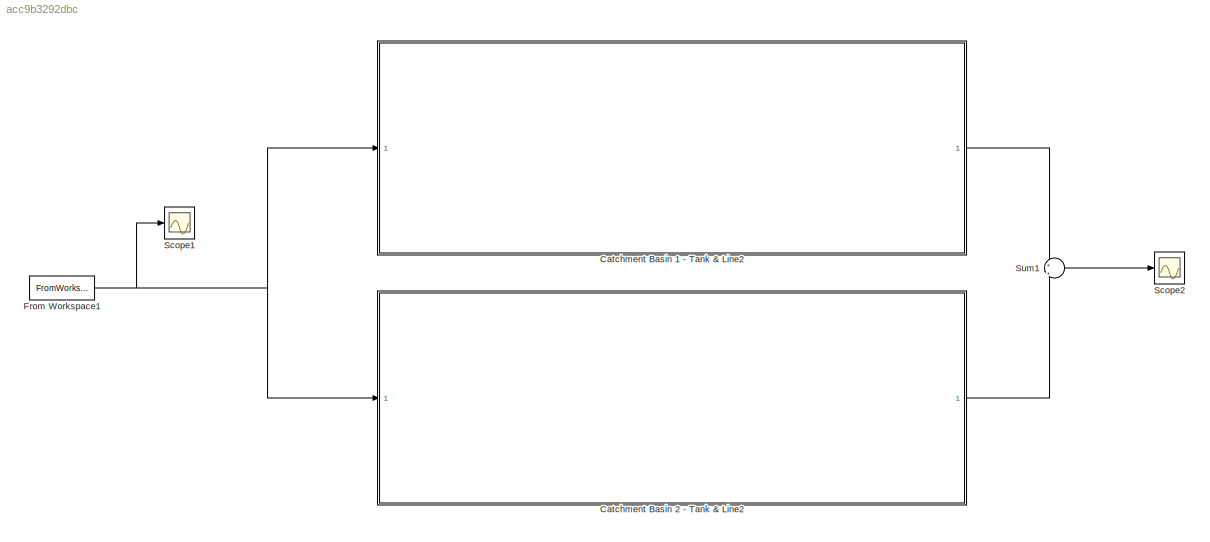
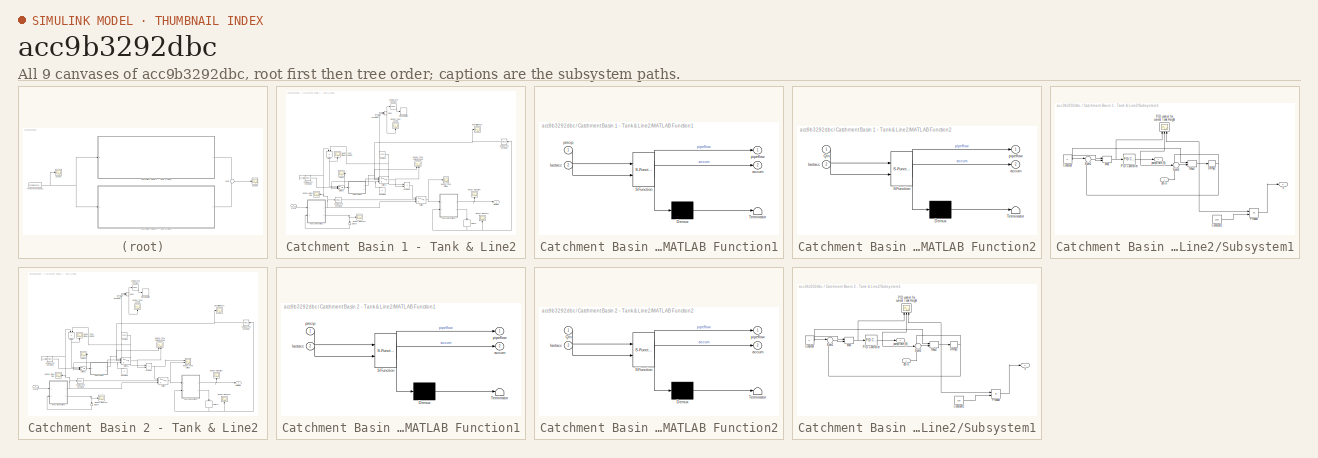
[diagram: thumbnail index - all 9 canvases of the model, root first then tree order]
MODEL slx_acc9b3292dbc
KIND model
CONFIG AbsTol = auto
CONFIG EnableMultiTasking = off
CONFIG FixedStep = auto
CONFIG MaxStep = auto
CONFIG MinStep = auto
CONFIG RelTol = 1e-3
CONFIG SampleTimeConstraint = Unconstrained
CONFIG Solver = VariableStepAuto
CONFIG SolverName = VariableStepAuto
CONFIG StartTime = 0.0
CONFIG StopTime = 10.0
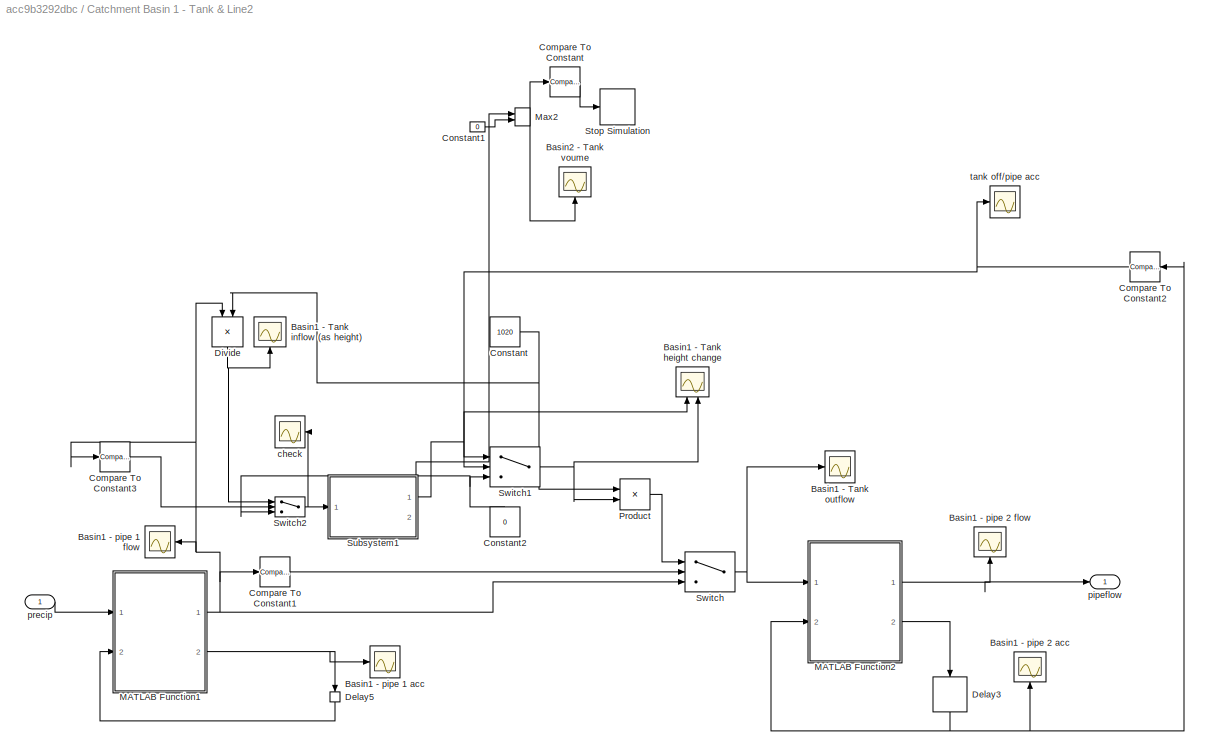
BLOCK [SubSystem] Catchment Basin 1 - Tank & Line2
  Ports = [1, 1]
  RequestExecContextInheritance = off
BLOCK [Scope] Catchment Basin 1 - Tank & Line2/  Basin1 - pipe 1 flow
  Floating = off
  NumInputPorts = 1
  Ports = [1]
  ScopeSpecificationString = Simulink.scopes.TimeScopeBlockCfg('CurrentConfiguration', extmgr.ConfigurationSet(extmgr.Configuration('Core','General UI',true),extmgr.Configuration('Core','Source UI',true),extmgr.Configuration('Sources','WiredSimulink',true,'DataLoggingVariableName','ScopeData3'),extmgr.Configuration('Visuals','Time Domain',true,'SerializedDisplays',{struct('MinYLimReal','-2423.75','MaxYLimReal','21813.75','YLa...<+1491ch>
BLOCK [Scope] Catchment Basin 1 - Tank & Line2/ Basin1 - pipe 1 acc
  Floating = off
  NumInputPorts = 1
  Ports = [1]
  ScopeSpecificationString = Simulink.scopes.TimeScopeBlockCfg('CurrentConfiguration', extmgr.ConfigurationSet(extmgr.Configuration('Core','General UI',true),extmgr.Configuration('Core','Source UI',true),extmgr.Configuration('Sources','WiredSimulink',true,'DataLoggingVariableName','ScopeData1'),extmgr.Configuration('Visuals','Time Domain',true,'SerializedDisplays',{struct('MinYLimReal','-4305934.13618','MaxYLimReal','38753407...<+1459ch>
BLOCK [Scope] Catchment Basin 1 - Tank & Line2/ Basin2 - Tank voume
  Floating = off
  NameLocation = right
  NumInputPorts = 1
  Ports = [1]
  ScopeSpecificationString = Simulink.scopes.TimeScopeBlockCfg('CurrentConfiguration', extmgr.ConfigurationSet(extmgr.Configuration('Core','General UI',true),extmgr.Configuration('Core','Source UI',true),extmgr.Configuration('Sources','WiredSimulink',true,'DataLoggingVariableName','ScopeData5'),extmgr.Configuration('Visuals','Time Domain',true,'SerializedDisplays',{struct('MinYLimReal','-965.25711','MaxYLimReal','21522.05142'...<+1588ch>
BLOCK [Scope] Catchment Basin 1 - Tank & Line2/Basin1 - Tank  inflow (as height)
  Floating = off
  NameLocation = right
  NumInputPorts = 1
  Ports = [1]
  ScopeSpecificationString = Simulink.scopes.TimeScopeBlockCfg('CurrentConfiguration', extmgr.ConfigurationSet(extmgr.Configuration('Core','General UI',true),extmgr.Configuration('Core','Source UI',true),extmgr.Configuration('Sources','WiredSimulink',true,'DataLoggingVariableName','ScopeData4'),extmgr.Configuration('Visuals','Time Domain',true,'SerializedDisplays',{struct('MinYLimReal','-2.37623','MaxYLimReal','21.38603','YLa...<+1422ch>
BLOCK [Scope] Catchment Basin 1 - Tank & Line2/Basin1 - Tank height change
  Floating = off
  NameLocation = right
  NumInputPorts = 2
  Ports = [2]
  ScopeSpecificationString = Simulink.scopes.TimeScopeBlockCfg('CurrentConfiguration', extmgr.ConfigurationSet(extmgr.Configuration('Core','General UI',true),extmgr.Configuration('Core','Source UI',true),extmgr.Configuration('Sources','WiredSimulink',true,'DataLoggingVariableName','ScopeData2'),extmgr.Configuration('Visuals','Time Domain',true,'SerializedDisplays',{struct('MinYLimReal','-17.02648','MaxYLimReal','153.23828','Y...<+1463ch>
BLOCK [Scope] Catchment Basin 1 - Tank & Line2/Basin1 - Tank outflow
  Floating = off
  NumInputPorts = 1
  Ports = [1]
  ScopeSpecificationString = Simulink.scopes.TimeScopeBlockCfg('CurrentConfiguration', extmgr.ConfigurationSet(extmgr.Configuration('Core','General UI',true),extmgr.Configuration('Core','Source UI',true),extmgr.Configuration('Sources','WiredSimulink',true,'DataLoggingVariableName','ScopeData1'),extmgr.Configuration('Visuals','Time Domain',true,'SerializedDisplays',{struct('MinYLimReal','-38214.64252','MaxYLimReal','387928.816...<+1599ch>
BLOCK [Scope] Catchment Basin 1 - Tank & Line2/Basin1 - pipe 2 acc
  Floating = off
  NameLocation = right
  NumInputPorts = 1
  Ports = [1]
  ScopeSpecificationString = Simulink.scopes.TimeScopeBlockCfg('CurrentConfiguration', extmgr.ConfigurationSet(extmgr.Configuration('Core','General UI',true),extmgr.Configuration('Core','Source UI',true),extmgr.Configuration('Sources','WiredSimulink',true,'DataLoggingVariableName','ScopeData3'),extmgr.Configuration('Visuals','Time Domain',true,'SerializedDisplays',{struct('MinYLimReal','-6708.05068','MaxYLimReal','60372.45611...<+1439ch>
BLOCK [Scope] Catchment Basin 1 - Tank & Line2/Basin1 - pipe 2 flow
  Floating = off
  NameLocation = right
  NumInputPorts = 1
  Ports = [1]
  ScopeSpecificationString = Simulink.scopes.TimeScopeBlockCfg('CurrentConfiguration', extmgr.ConfigurationSet(extmgr.Configuration('Core','General UI',true),extmgr.Configuration('Core','Source UI',true),extmgr.Configuration('Sources','WiredSimulink',true,'DataLoggingVariableName','ScopeData2'),extmgr.Configuration('Visuals','Time Domain',true,'SerializedDisplays',{struct('MinYLimReal','-1803.24346','MaxYLimReal','21813.75','...<+1446ch>
BLOCK [Reference] Catchment Basin 1 - Tank & Line2/Compare To Constant  REF=simulink/Logic and Bit
Operations/Compare
To Constant
  Ports = [1, 1]
  SourceBlock = simulink/Logic and Bit\nOperations/Compare\nTo Constant
  SourceProductBaseCode = SL
  SourceType = Compare To Constant
BLOCK [Reference] Catchment Basin 1 - Tank & Line2/Compare To Constant1  REF=simulink/Logic and Bit
Operations/Compare
To Constant
  Ports = [1, 1]
  SourceBlock = simulink/Logic and Bit\nOperations/Compare\nTo Constant
  SourceProductBaseCode = SL
  SourceType = Compare To Constant
BLOCK [Reference] Catchment Basin 1 - Tank & Line2/Compare To Constant2  REF=simulink/Logic and Bit
Operations/Compare
To Constant
  Ports = [1, 1]
  SourceBlock = simulink/Logic and Bit\nOperations/Compare\nTo Constant
  SourceProductBaseCode = SL
  SourceType = Compare To Constant
BLOCK [Reference] Catchment Basin 1 - Tank & Line2/Compare To Constant3  REF=simulink/Logic and Bit
Operations/Compare
To Constant
  Ports = [1, 1]
  SourceBlock = simulink/Logic and Bit\nOperations/Compare\nTo Constant
  SourceProductBaseCode = SL
  SourceType = Compare To Constant
BLOCK [Constant] Catchment Basin 1 - Tank & Line2/Constant
  Value = 1020
BLOCK [Constant] Catchment Basin 1 - Tank & Line2/Constant1
  Value = 0
BLOCK [Constant] Catchment Basin 1 - Tank & Line2/Constant2
  NameLocation = right
  SampleTime = 1
  Value = 0
BLOCK [Delay] Catchment Basin 1 - Tank & Line2/Delay3
  DelayLength = 1
  InitialCondition = 0
  InputPortMap = u0
  NameLocation = right
  Ports = [1, 1]
BLOCK [Delay] Catchment Basin 1 - Tank & Line2/Delay5
  DelayLength = 1
  InitialCondition = 0
  InputPortMap = u0
  NameLocation = left
  Ports = [1, 1]
BLOCK [Product] Catchment Basin 1 - Tank & Line2/Divide
  Inputs = */
  NameLocation = left
  Ports = [2, 1]
BLOCK [SubSystem] Catchment Basin 1 - Tank & Line2/MATLAB Function1
  ErrorFcn = Stateflow.Translate.translate
  PermitHierarchicalResolution = ExplicitOnly
  Ports = [2, 2]
  RequestExecContextInheritance = off
  SFBlockType = MATLAB Function
  TreatAsAtomicUnit = on
BLOCK [Demux] Catchment Basin 1 - Tank & Line2/MATLAB Function1/ Demux 
  Outputs = 1
  Ports = [1, 1]
BLOCK [S-Function] Catchment Basin 1 - Tank & Line2/MATLAB Function1/ SFunction 
  EnableBusSupport = on
  FunctionName = sf_sfun
  Parameters = R,S,basin2,k,n
  PortCounts = [2 3]
  Ports = [2, 3]
  SFcnIsStateOwnerBlock = off
  SFunctionDeploymentMode = off
  Tag = Stateflow S-Function 8
BLOCK [Terminator] Catchment Basin 1 - Tank & Line2/MATLAB Function1/ Terminator 
BLOCK [Outport] Catchment Basin 1 - Tank & Line2/MATLAB Function1/accum
  Port = 2
BLOCK [Inport] Catchment Basin 1 - Tank & Line2/MATLAB Function1/lastacc
  Port = 2
BLOCK [Outport] Catchment Basin 1 - Tank & Line2/MATLAB Function1/pipeflow
BLOCK [Inport] Catchment Basin 1 - Tank & Line2/MATLAB Function1/precip
BLOCK [SubSystem] Catchment Basin 1 - Tank & Line2/MATLAB Function2
  ErrorFcn = Stateflow.Translate.translate
  PermitHierarchicalResolution = ExplicitOnly
  Ports = [2, 2]
  RequestExecContextInheritance = off
  SFBlockType = MATLAB Function
  TreatAsAtomicUnit = on
BLOCK [Demux] Catchment Basin 1 - Tank & Line2/MATLAB Function2/ Demux 
  Outputs = 1
  Ports = [1, 1]
BLOCK [S-Function] Catchment Basin 1 - Tank & Line2/MATLAB Function2/ SFunction 
  EnableBusSupport = on
  FunctionName = sf_sfun
  PortCounts = [2 3]
  Ports = [2, 3]
  SFcnIsStateOwnerBlock = off
  SFunctionDeploymentMode = off
  Tag = Stateflow S-Function 10
BLOCK [Terminator] Catchment Basin 1 - Tank & Line2/MATLAB Function2/ Terminator 
BLOCK [Inport] Catchment Basin 1 - Tank & Line2/MATLAB Function2/Qin
BLOCK [Outport] Catchment Basin 1 - Tank & Line2/MATLAB Function2/accum
  Port = 2
BLOCK [Inport] Catchment Basin 1 - Tank & Line2/MATLAB Function2/lastacc
  Port = 2
BLOCK [Outport] Catchment Basin 1 - Tank & Line2/MATLAB Function2/pipeflow
BLOCK [MinMax] Catchment Basin 1 - Tank & Line2/Max2
  Function = max
  Inputs = 2
  Ports = [2, 1]
BLOCK [Product] Catchment Basin 1 - Tank & Line2/Product
  Ports = [2, 1]
BLOCK [Stop] Catchment Basin 1 - Tank & Line2/Stop Simulation
  Commented = on
BLOCK [SubSystem] Catchment Basin 1 - Tank & Line2/Subsystem1
  PortSchema = {"entries":[{"content":{"sides":[{"content":{"connectorIds":["In1"]},"type":"ConnectorPlacement.EquallySpacedRectSide","uuid":"49521410-f26e-428f-a0f4-6065ef8c5de4"},{"content":{"connectorIds":["Out1"],"side":"RIGHT"},"type":"ConnectorPlacement.EquallySpacedRectSide","uuid":"23e51712-c361-47eb-a12a-34fba58dacf0"},{"content":{"connectorIds":["Out2"],"side":"TOP"},"type":"ConnectorPlacement.EquallyS...<+392ch>
  Ports = [1, 2]
  RequestExecContextInheritance = off
BLOCK [Constant] Catchment Basin 1 - Tank & Line2/Subsystem1/Constant
  SampleTime = 1
  Value = 0
BLOCK [Constant] Catchment Basin 1 - Tank & Line2/Subsystem1/Constant1
  Value = 1020
BLOCK [Delay] Catchment Basin 1 - Tank & Line2/Subsystem1/Delay2
  DelayLength = 1
  InitialCondition = 0
  InputPortMap = u0
  Ports = [1, 1]
BLOCK [MinMax] Catchment Basin 1 - Tank & Line2/Subsystem1/Max
  Function = max
  Inputs = 2
  Ports = [2, 1]
BLOCK [MinMax] Catchment Basin 1 - Tank & Line2/Subsystem1/Max2
  Function = max
  Inputs = 2
  Ports = [2, 1]
BLOCK [Reference] Catchment Basin 1 - Tank & Line2/Subsystem1/PID Controller  REF=simulink/Continuous/PID Controller
  Ports = [1, 1]
  SourceBlock = simulink/Continuous/PID Controller
  SourceProductBaseCode = SL
  SourceType = PID 1dof
BLOCK [Scope] Catchment Basin 1 - Tank & Line2/Subsystem1/PID control for current Tank Height
  Floating = off
  NameLocation = right
  NumInputPorts = 3
  Ports = [3]
  ScopeSpecificationString = Simulink.scopes.TimeScopeBlockCfg('CurrentConfiguration', extmgr.ConfigurationSet(extmgr.Configuration('Core','General UI',true),extmgr.Configuration('Core','Source UI',true),extmgr.Configuration('Sources','WiredSimulink',true,'DataLoggingVariableName','ScopeData3'),extmgr.Configuration('Visuals','Time Domain',true,'SerializedDisplays',{struct('MinYLimReal','-24.2321','MaxYLimReal','364.35473','YL...<+1467ch>
BLOCK [Product] Catchment Basin 1 - Tank & Line2/Subsystem1/Product
  Ports = [2, 1]
BLOCK [Sum] Catchment Basin 1 - Tank & Line2/Subsystem1/Sum1
  Inputs = |-+
  OutMin = 0
  Ports = [2, 1]
BLOCK [Sum] Catchment Basin 1 - Tank & Line2/Subsystem1/Sum2
  Inputs = +-+
  OutMin = 0
  Ports = [3, 1]
BLOCK [Outport] Catchment Basin 1 - Tank & Line2/Subsystem1/V
  Port = 2
BLOCK [Inport] Catchment Basin 1 - Tank & Line2/Subsystem1/dh in
BLOCK [Outport] Catchment Basin 1 - Tank & Line2/Subsystem1/pump rate (h)
BLOCK [Switch] Catchment Basin 1 - Tank & Line2/Switch
  Criteria = u2 > Threshold
  InputSameDT = off
  SaturateOnIntegerOverflow = off
BLOCK [Switch] Catchment Basin 1 - Tank & Line2/Switch1
  Criteria = u2 > Threshold
  InputSameDT = off
  SaturateOnIntegerOverflow = off
BLOCK [Switch] Catchment Basin 1 - Tank & Line2/Switch2
  Criteria = u2 > Threshold
  InputSameDT = off
  SaturateOnIntegerOverflow = off
BLOCK [Scope] Catchment Basin 1 - Tank & Line2/check
  Floating = off
  NumInputPorts = 1
  Ports = [1]
  ScopeSpecificationString = Simulink.scopes.TimeScopeBlockCfg('CurrentConfiguration', extmgr.ConfigurationSet(extmgr.Configuration('Core','General UI',true),extmgr.Configuration('Core','Source UI',true),extmgr.Configuration('Sources','WiredSimulink',true,'DataLoggingVariableName','ScopeData1'),extmgr.Configuration('Visuals','Time Domain',true,'SerializedDisplays',{struct('MinYLimReal','-2.37623','MaxYLimReal','21.38603','YLa...<+1443ch>
BLOCK [Outport] Catchment Basin 1 - Tank & Line2/pipeflow
BLOCK [Inport] Catchment Basin 1 - Tank & Line2/precip
BLOCK [Scope] Catchment Basin 1 - Tank & Line2/tank off//pipe acc
  Floating = off
  NumInputPorts = 1
  Ports = [1]
  ScopeSpecificationString = Simulink.scopes.TimeScopeBlockCfg('CurrentConfiguration', extmgr.ConfigurationSet(extmgr.Configuration('Core','General UI',true),extmgr.Configuration('Core','Source UI',true),extmgr.Configuration('Sources','WiredSimulink',true,'DataLoggingVariableName','ScopeData1'),extmgr.Configuration('Visuals','Time Domain',true,'SerializedDisplays',{struct('MinYLimReal','0.9','MaxYLimReal','1.1','YLabelReal','...<+1409ch>
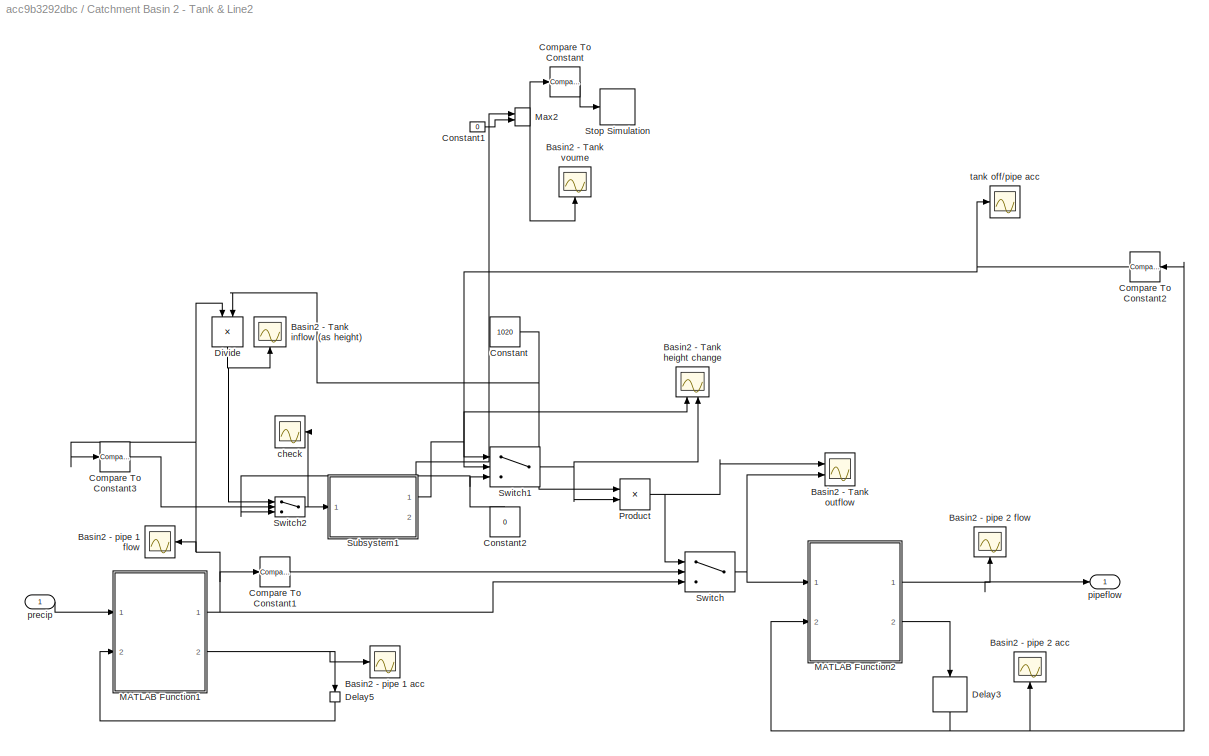
BLOCK [SubSystem] Catchment Basin 2 - Tank & Line2
  Ports = [1, 1]
  RequestExecContextInheritance = off
BLOCK [Scope] Catchment Basin 2 - Tank & Line2/  Basin2 - pipe 1 flow
  Floating = off
  NumInputPorts = 1
  Ports = [1]
  ScopeSpecificationString = Simulink.scopes.TimeScopeBlockCfg('CurrentConfiguration', extmgr.ConfigurationSet(extmgr.Configuration('Core','General UI',true),extmgr.Configuration('Core','Source UI',true),extmgr.Configuration('Sources','WiredSimulink',true,'DataLoggingVariableName','ScopeData3'),extmgr.Configuration('Visuals','Time Domain',true,'SerializedDisplays',{struct('MinYLimReal','-2423.75','MaxYLimReal','21813.75','YLa...<+1465ch>
BLOCK [Scope] Catchment Basin 2 - Tank & Line2/ Basin2 - Tank voume
  Floating = off
  NameLocation = right
  NumInputPorts = 1
  Ports = [1]
  ScopeSpecificationString = Simulink.scopes.TimeScopeBlockCfg('CurrentConfiguration', extmgr.ConfigurationSet(extmgr.Configuration('Core','General UI',true),extmgr.Configuration('Core','Source UI',true),extmgr.Configuration('Sources','WiredSimulink',true,'DataLoggingVariableName','ScopeData5'),extmgr.Configuration('Visuals','Time Domain',true,'SerializedDisplays',{struct('MinYLimReal','-930.00000','MaxYLimReal','8370.00000',...<+1584ch>
BLOCK [Scope] Catchment Basin 2 - Tank & Line2/ Basin2 - pipe 1 acc
  Floating = off
  NumInputPorts = 1
  Ports = [1]
  ScopeSpecificationString = Simulink.scopes.TimeScopeBlockCfg('CurrentConfiguration', extmgr.ConfigurationSet(extmgr.Configuration('Core','General UI',true),extmgr.Configuration('Core','Source UI',true),extmgr.Configuration('Sources','WiredSimulink',true,'DataLoggingVariableName','ScopeData1'),extmgr.Configuration('Visuals','Time Domain',true,'SerializedDisplays',{struct('MinYLimReal','-4305934.13618','MaxYLimReal','38753407...<+1459ch>
BLOCK [Scope] Catchment Basin 2 - Tank & Line2/Basin2 - Tank  inflow (as height)
  Floating = off
  NameLocation = right
  NumInputPorts = 1
  Ports = [1]
  ScopeSpecificationString = Simulink.scopes.TimeScopeBlockCfg('CurrentConfiguration', extmgr.ConfigurationSet(extmgr.Configuration('Core','General UI',true),extmgr.Configuration('Core','Source UI',true),extmgr.Configuration('Sources','WiredSimulink',true,'DataLoggingVariableName','ScopeData4'),extmgr.Configuration('Visuals','Time Domain',true,'SerializedDisplays',{struct('MinYLimReal','-2.37623','MaxYLimReal','21.38603','YLa...<+1422ch>
BLOCK [Scope] Catchment Basin 2 - Tank & Line2/Basin2 - Tank height change
  Floating = off
  NameLocation = right
  NumInputPorts = 2
  Ports = [2]
  ScopeSpecificationString = Simulink.scopes.TimeScopeBlockCfg('CurrentConfiguration', extmgr.ConfigurationSet(extmgr.Configuration('Core','General UI',true),extmgr.Configuration('Core','Source UI',true),extmgr.Configuration('Sources','WiredSimulink',true,'DataLoggingVariableName','ScopeData2'),extmgr.Configuration('Visuals','Time Domain',true,'SerializedDisplays',{struct('MinYLimReal','-37.82971','MaxYLimReal','340.46742','Y...<+1463ch>
BLOCK [Scope] Catchment Basin 2 - Tank & Line2/Basin2 - Tank outflow
  Floating = off
  NumInputPorts = 2
  Ports = [2]
  ScopeSpecificationString = Simulink.scopes.TimeScopeBlockCfg('CurrentConfiguration', extmgr.ConfigurationSet(extmgr.Configuration('Core','General UI',true),extmgr.Configuration('Core','Source UI',true),extmgr.Configuration('Sources','WiredSimulink',true,'DataLoggingVariableName','ScopeData1'),extmgr.Configuration('Visuals','Time Domain',true,'SerializedDisplays',{struct('MinYLimReal','-9132.12244','MaxYLimReal','82189.10194...<+1575ch>
BLOCK [Scope] Catchment Basin 2 - Tank & Line2/Basin2 - pipe 2 acc
  Floating = off
  NameLocation = right
  NumInputPorts = 1
  Ports = [1]
  ScopeSpecificationString = Simulink.scopes.TimeScopeBlockCfg('CurrentConfiguration', extmgr.ConfigurationSet(extmgr.Configuration('Core','General UI',true),extmgr.Configuration('Core','Source UI',true),extmgr.Configuration('Sources','WiredSimulink',true,'DataLoggingVariableName','ScopeData3'),extmgr.Configuration('Visuals','Time Domain',true,'SerializedDisplays',{struct('MinYLimReal','-6708.05068','MaxYLimReal','60372.45611...<+1439ch>
BLOCK [Scope] Catchment Basin 2 - Tank & Line2/Basin2 - pipe 2 flow
  Floating = off
  NameLocation = right
  NumInputPorts = 1
  Ports = [1]
  ScopeSpecificationString = Simulink.scopes.TimeScopeBlockCfg('CurrentConfiguration', extmgr.ConfigurationSet(extmgr.Configuration('Core','General UI',true),extmgr.Configuration('Core','Source UI',true),extmgr.Configuration('Sources','WiredSimulink',true,'DataLoggingVariableName','ScopeData2'),extmgr.Configuration('Visuals','Time Domain',true,'SerializedDisplays',{struct('MinYLimReal','-1803.24346','MaxYLimReal','21813.75','...<+1446ch>
BLOCK [Reference] Catchment Basin 2 - Tank & Line2/Compare To Constant  REF=simulink/Logic and Bit
Operations/Compare
To Constant
  Ports = [1, 1]
  SourceBlock = simulink/Logic and Bit\nOperations/Compare\nTo Constant
  SourceProductBaseCode = SL
  SourceType = Compare To Constant
BLOCK [Reference] Catchment Basin 2 - Tank & Line2/Compare To Constant1  REF=simulink/Logic and Bit
Operations/Compare
To Constant
  Ports = [1, 1]
  SourceBlock = simulink/Logic and Bit\nOperations/Compare\nTo Constant
  SourceProductBaseCode = SL
  SourceType = Compare To Constant
BLOCK [Reference] Catchment Basin 2 - Tank & Line2/Compare To Constant2  REF=simulink/Logic and Bit
Operations/Compare
To Constant
  Ports = [1, 1]
  SourceBlock = simulink/Logic and Bit\nOperations/Compare\nTo Constant
  SourceProductBaseCode = SL
  SourceType = Compare To Constant
BLOCK [Reference] Catchment Basin 2 - Tank & Line2/Compare To Constant3  REF=simulink/Logic and Bit
Operations/Compare
To Constant
  Ports = [1, 1]
  SourceBlock = simulink/Logic and Bit\nOperations/Compare\nTo Constant
  SourceProductBaseCode = SL
  SourceType = Compare To Constant
BLOCK [Constant] Catchment Basin 2 - Tank & Line2/Constant
  Value = 1020
BLOCK [Constant] Catchment Basin 2 - Tank & Line2/Constant1
  Value = 0
BLOCK [Constant] Catchment Basin 2 - Tank & Line2/Constant2
  NameLocation = right
  SampleTime = 1
  Value = 0
BLOCK [Delay] Catchment Basin 2 - Tank & Line2/Delay3
  DelayLength = 1
  InitialCondition = 0
  InputPortMap = u0
  NameLocation = right
  Ports = [1, 1]
BLOCK [Delay] Catchment Basin 2 - Tank & Line2/Delay5
  DelayLength = 1
  InitialCondition = 0
  InputPortMap = u0
  NameLocation = left
  Ports = [1, 1]
BLOCK [Product] Catchment Basin 2 - Tank & Line2/Divide
  Inputs = */
  NameLocation = left
  Ports = [2, 1]
BLOCK [SubSystem] Catchment Basin 2 - Tank & Line2/MATLAB Function1
  ErrorFcn = Stateflow.Translate.translate
  PermitHierarchicalResolution = ExplicitOnly
  Ports = [2, 2]
  RequestExecContextInheritance = off
  SFBlockType = MATLAB Function
  TreatAsAtomicUnit = on
BLOCK [Demux] Catchment Basin 2 - Tank & Line2/MATLAB Function1/ Demux 
  Outputs = 1
  Ports = [1, 1]
BLOCK [S-Function] Catchment Basin 2 - Tank & Line2/MATLAB Function1/ SFunction 
  EnableBusSupport = on
  FunctionName = sf_sfun
  Parameters = R,S,basin2,k,n
  PortCounts = [2 3]
  Ports = [2, 3]
  SFcnIsStateOwnerBlock = off
  SFunctionDeploymentMode = off
  Tag = Stateflow S-Function 4
BLOCK [Terminator] Catchment Basin 2 - Tank & Line2/MATLAB Function1/ Terminator 
BLOCK [Outport] Catchment Basin 2 - Tank & Line2/MATLAB Function1/accum
  Port = 2
BLOCK [Inport] Catchment Basin 2 - Tank & Line2/MATLAB Function1/lastacc
  Port = 2
BLOCK [Outport] Catchment Basin 2 - Tank & Line2/MATLAB Function1/pipeflow
BLOCK [Inport] Catchment Basin 2 - Tank & Line2/MATLAB Function1/precip
BLOCK [SubSystem] Catchment Basin 2 - Tank & Line2/MATLAB Function2
  ErrorFcn = Stateflow.Translate.translate
  PermitHierarchicalResolution = ExplicitOnly
  Ports = [2, 2]
  RequestExecContextInheritance = off
  SFBlockType = MATLAB Function
  TreatAsAtomicUnit = on
BLOCK [Demux] Catchment Basin 2 - Tank & Line2/MATLAB Function2/ Demux 
  Outputs = 1
  Ports = [1, 1]
BLOCK [S-Function] Catchment Basin 2 - Tank & Line2/MATLAB Function2/ SFunction 
  EnableBusSupport = on
  FunctionName = sf_sfun
  PortCounts = [2 3]
  Ports = [2, 3]
  SFcnIsStateOwnerBlock = off
  SFunctionDeploymentMode = off
  Tag = Stateflow S-Function 6
BLOCK [Terminator] Catchment Basin 2 - Tank & Line2/MATLAB Function2/ Terminator 
BLOCK [Inport] Catchment Basin 2 - Tank & Line2/MATLAB Function2/Qin
BLOCK [Outport] Catchment Basin 2 - Tank & Line2/MATLAB Function2/accum
  Port = 2
BLOCK [Inport] Catchment Basin 2 - Tank & Line2/MATLAB Function2/lastacc
  Port = 2
BLOCK [Outport] Catchment Basin 2 - Tank & Line2/MATLAB Function2/pipeflow
BLOCK [MinMax] Catchment Basin 2 - Tank & Line2/Max2
  Function = max
  Inputs = 2
  Ports = [2, 1]
BLOCK [Product] Catchment Basin 2 - Tank & Line2/Product
  Ports = [2, 1]
BLOCK [Stop] Catchment Basin 2 - Tank & Line2/Stop Simulation
  Commented = on
BLOCK [SubSystem] Catchment Basin 2 - Tank & Line2/Subsystem1
  PortSchema = {"entries":[{"content":{"sides":[{"content":{"connectorIds":["In1"]},"type":"ConnectorPlacement.EquallySpacedRectSide","uuid":"49521410-f26e-428f-a0f4-6065ef8c5de4"},{"content":{"connectorIds":["Out1"],"side":"RIGHT"},"type":"ConnectorPlacement.EquallySpacedRectSide","uuid":"23e51712-c361-47eb-a12a-34fba58dacf0"},{"content":{"connectorIds":["Out2"],"side":"TOP"},"type":"ConnectorPlacement.EquallyS...<+392ch>
  Ports = [1, 2]
  RequestExecContextInheritance = off
BLOCK [Constant] Catchment Basin 2 - Tank & Line2/Subsystem1/Constant
  SampleTime = 1
  Value = 0
BLOCK [Constant] Catchment Basin 2 - Tank & Line2/Subsystem1/Constant1
  Value = 300
BLOCK [Delay] Catchment Basin 2 - Tank & Line2/Subsystem1/Delay2
  DelayLength = 1
  InitialCondition = 0
  InputPortMap = u0
  Ports = [1, 1]
BLOCK [MinMax] Catchment Basin 2 - Tank & Line2/Subsystem1/Max
  Function = max
  Inputs = 2
  Ports = [2, 1]
BLOCK [MinMax] Catchment Basin 2 - Tank & Line2/Subsystem1/Max2
  Function = max
  Inputs = 2
  Ports = [2, 1]
BLOCK [Reference] Catchment Basin 2 - Tank & Line2/Subsystem1/PID Controller  REF=simulink/Continuous/PID Controller
  Ports = [1, 1]
  SourceBlock = simulink/Continuous/PID Controller
  SourceProductBaseCode = SL
  SourceType = PID 1dof
BLOCK [Scope] Catchment Basin 2 - Tank & Line2/Subsystem1/PID control for current Tank Height
  Floating = off
  NameLocation = right
  NumInputPorts = 3
  Ports = [3]
  ScopeSpecificationString = Simulink.scopes.TimeScopeBlockCfg('CurrentConfiguration', extmgr.ConfigurationSet(extmgr.Configuration('Core','General UI',true),extmgr.Configuration('Core','Source UI',true),extmgr.Configuration('Sources','WiredSimulink',true,'DataLoggingVariableName','ScopeData3'),extmgr.Configuration('Visuals','Time Domain',true,'SerializedDisplays',{struct('MinYLimReal','-8.76528','MaxYLimReal','141.33657','YL...<+1467ch>
BLOCK [Product] Catchment Basin 2 - Tank & Line2/Subsystem1/Product
  Ports = [2, 1]
BLOCK [Sum] Catchment Basin 2 - Tank & Line2/Subsystem1/Sum1
  Inputs = |-+
  OutMin = 0
  Ports = [2, 1]
BLOCK [Sum] Catchment Basin 2 - Tank & Line2/Subsystem1/Sum2
  Inputs = +-+
  OutMin = 0
  Ports = [3, 1]
BLOCK [Outport] Catchment Basin 2 - Tank & Line2/Subsystem1/V
  Port = 2
BLOCK [Inport] Catchment Basin 2 - Tank & Line2/Subsystem1/dh in
BLOCK [Outport] Catchment Basin 2 - Tank & Line2/Subsystem1/pump rate (h)
BLOCK [Switch] Catchment Basin 2 - Tank & Line2/Switch
  Criteria = u2 > Threshold
  InputSameDT = off
  SaturateOnIntegerOverflow = off
BLOCK [Switch] Catchment Basin 2 - Tank & Line2/Switch1
  Criteria = u2 > Threshold
  InputSameDT = off
  SaturateOnIntegerOverflow = off
BLOCK [Switch] Catchment Basin 2 - Tank & Line2/Switch2
  Criteria = u2 > Threshold
  InputSameDT = off
  SaturateOnIntegerOverflow = off
BLOCK [Scope] Catchment Basin 2 - Tank & Line2/check
  Floating = off
  NumInputPorts = 1
  Ports = [1]
  ScopeSpecificationString = Simulink.scopes.TimeScopeBlockCfg('CurrentConfiguration', extmgr.ConfigurationSet(extmgr.Configuration('Core','General UI',true),extmgr.Configuration('Core','Source UI',true),extmgr.Configuration('Sources','WiredSimulink',true,'DataLoggingVariableName','ScopeData1'),extmgr.Configuration('Visuals','Time Domain',true,'SerializedDisplays',{struct('MinYLimReal','-8.07917','MaxYLimReal','72.7125','YLab...<+1439ch>
BLOCK [Outport] Catchment Basin 2 - Tank & Line2/pipeflow
BLOCK [Inport] Catchment Basin 2 - Tank & Line2/precip
BLOCK [Scope] Catchment Basin 2 - Tank & Line2/tank off//pipe acc
  Floating = off
  NumInputPorts = 1
  Ports = [1]
  ScopeSpecificationString = Simulink.scopes.TimeScopeBlockCfg('CurrentConfiguration', extmgr.ConfigurationSet(extmgr.Configuration('Core','General UI',true),extmgr.Configuration('Core','Source UI',true),extmgr.Configuration('Sources','WiredSimulink',true,'DataLoggingVariableName','ScopeData1'),extmgr.Configuration('Visuals','Time Domain',true,'SerializedDisplays',{struct('MinYLimReal','-0.125','MaxYLimReal','1.125','YLabelRe...<+1431ch>
BLOCK [FromWorkspace] From Workspace1
  SampleTime = 1
  VariableName = sixhr200yr
BLOCK [Scope] Scope1
  Floating = off
  NumInputPorts = 1
  Ports = [1]
  ScopeSpecificationString = Simulink.scopes.TimeScopeBlockCfg('CurrentConfiguration', extmgr.ConfigurationSet(extmgr.Configuration('Core','General UI',true),extmgr.Configuration('Core','Source UI',true),extmgr.Configuration('Sources','WiredSimulink',true,'DataLoggingVariableName','ScopeData2','DataLoggingSaveFormat','Array','DataLoggingLimitDataPoints',true,'DataLoggingDecimation','1'),extmgr.Configuration('Visuals','Time Do...<+1722ch>
BLOCK [Scope] Scope2
  Floating = off
  NumInputPorts = 1
  Ports = [1]
  ScopeSpecificationString = Simulink.scopes.TimeScopeBlockCfg('CurrentConfiguration', extmgr.ConfigurationSet(extmgr.Configuration('Core','General UI',true),extmgr.Configuration('Core','Source UI',true),extmgr.Configuration('Sources','WiredSimulink',true,'DataLoggingVariableName','ScopeData3','DataLoggingSaveFormat','Array','DataLoggingLimitDataPoints',true,'DataLoggingDecimation','1'),extmgr.Configuration('Visuals','Time Do...<+1637ch>
BLOCK [Sum] Sum1
  Inputs = +|+
  Ports = [2, 1]
LINE Catchment Basin 1 - Tank & Line2/Compare To Constant1:1 -> Catchment Basin 1 - Tank & Line2/Switch:2
NET Catchment Basin 1 - Tank & Line2/Compare To Constant2:1 -> Catchment Basin 1 - Tank & Line2/Switch1:2, Catchment Basin 1 - Tank & Line2/tank off//pipe acc:1
LINE Catchment Basin 1 - Tank & Line2/Compare To Constant3:1 -> Catchment Basin 1 - Tank & Line2/Switch2:2
LINE Catchment Basin 1 - Tank & Line2/Compare To Constant:1 -> Catchment Basin 1 - Tank & Line2/Stop Simulation:1
LINE Catchment Basin 1 - Tank & Line2/Constant1:1 -> Catchment Basin 1 - Tank & Line2/Max2:2
NET Catchment Basin 1 - Tank & Line2/Constant2:1 -> Catchment Basin 1 - Tank & Line2/Switch1:3, Catchment Basin 1 - Tank & Line2/Switch2:3
NET Catchment Basin 1 - Tank & Line2/Constant:1 -> Catchment Basin 1 - Tank & Line2/Divide:2, Catchment Basin 1 - Tank & Line2/Product:1
NET Catchment Basin 1 - Tank & Line2/Delay3:1 -> Catchment Basin 1 - Tank & Line2/Basin1 - pipe 2 acc:1, Catchment Basin 1 - Tank & Line2/Compare To Constant2:1, Catchment Basin 1 - Tank & Line2/MATLAB Function2:2
LINE Catchment Basin 1 - Tank & Line2/Delay5:1 -> Catchment Basin 1 - Tank & Line2/MATLAB Function1:2
NET Catchment Basin 1 - Tank & Line2/Divide:1 -> Catchment Basin 1 - Tank & Line2/Basin1 - Tank  inflow (as height):1, Catchment Basin 1 - Tank & Line2/Switch2:1
NET Catchment Basin 1 - Tank & Line2/MATLAB Function1:1 -> Catchment Basin 1 - Tank & Line2/  Basin1 - pipe 1 flow:1, Catchment Basin 1 - Tank & Line2/Compare To Constant1:1, Catchment Basin 1 - Tank & Line2/Compare To Constant3:1, Catchment Basin 1 - Tank & Line2/Divide:1, Catchment Basin 1 - Tank & Line2/Switch:3
NET Catchment Basin 1 - Tank & Line2/MATLAB Function1:2 -> Catchment Basin 1 - Tank & Line2/ Basin1 - pipe 1 acc:1, Catchment Basin 1 - Tank & Line2/Delay5:1
NET Catchment Basin 1 - Tank & Line2/MATLAB Function2:1 -> Catchment Basin 1 - Tank & Line2/Basin1 - pipe 2 flow:1, Catchment Basin 1 - Tank & Line2/pipeflow:1
LINE Catchment Basin 1 - Tank & Line2/MATLAB Function2:2 -> Catchment Basin 1 - Tank & Line2/Delay3:1
NET Catchment Basin 1 - Tank & Line2/Max2:1 -> Catchment Basin 1 - Tank & Line2/ Basin2 - Tank voume:1, Catchment Basin 1 - Tank & Line2/Compare To Constant:1
LINE Catchment Basin 1 - Tank & Line2/Product:1 -> Catchment Basin 1 - Tank & Line2/Switch:1
LINE Catchment Basin 1 - Tank & Line2/Subsystem1/Constant1:1 -> Catchment Basin 1 - Tank & Line2/Subsystem1/Product:2
NET Catchment Basin 1 - Tank & Line2/Subsystem1/Constant:1 -> Catchment Basin 1 - Tank & Line2/Subsystem1/Max2:1, Catchment Basin 1 - Tank & Line2/Subsystem1/Max:1, Catchment Basin 1 - Tank & Line2/Subsystem1/Sum1:1
NET Catchment Basin 1 - Tank & Line2/Subsystem1/Delay2:1 -> Catchment Basin 1 - Tank & Line2/Subsystem1/Sum1:2, Catchment Basin 1 - Tank & Line2/Subsystem1/Sum2:1
NET Catchment Basin 1 - Tank & Line2/Subsystem1/Max2:1 -> Catchment Basin 1 - Tank & Line2/Subsystem1/Delay2:1, Catchment Basin 1 - Tank & Line2/Subsystem1/PID control for current Tank Height:3, Catchment Basin 1 - Tank & Line2/Subsystem1/Product:1
NET Catchment Basin 1 - Tank & Line2/Subsystem1/Max:1 -> Catchment Basin 1 - Tank & Line2/Subsystem1/PID Controller:1, Catchment Basin 1 - Tank & Line2/Subsystem1/PID control for current Tank Height:1
NET Catchment Basin 1 - Tank & Line2/Subsystem1/PID Controller:1 -> Catchment Basin 1 - Tank & Line2/Subsystem1/PID control for current Tank Height:2, Catchment Basin 1 - Tank & Line2/Subsystem1/Sum2:2, Catchment Basin 1 - Tank & Line2/Subsystem1/pump rate (h):1
LINE Catchment Basin 1 - Tank & Line2/Subsystem1/Product:1 -> Catchment Basin 1 - Tank & Line2/Subsystem1/V:1
LINE Catchment Basin 1 - Tank & Line2/Subsystem1/Sum1:1 -> Catchment Basin 1 - Tank & Line2/Subsystem1/Max:2
LINE Catchment Basin 1 - Tank & Line2/Subsystem1/Sum2:1 -> Catchment Basin 1 - Tank & Line2/Subsystem1/Max2:2
LINE Catchment Basin 1 - Tank & Line2/Subsystem1/dh in:1 -> Catchment Basin 1 - Tank & Line2/Subsystem1/Sum2:3
NET Catchment Basin 1 - Tank & Line2/Subsystem1:1 -> Catchment Basin 1 - Tank & Line2/Basin1 - Tank height change:1, Catchment Basin 1 - Tank & Line2/Switch1:1
LINE Catchment Basin 1 - Tank & Line2/Subsystem1:2 -> Catchment Basin 1 - Tank & Line2/Max2:1
NET Catchment Basin 1 - Tank & Line2/Switch1:1 -> Catchment Basin 1 - Tank & Line2/Basin1 - Tank height change:2, Catchment Basin 1 - Tank & Line2/Product:2
NET Catchment Basin 1 - Tank & Line2/Switch2:1 -> Catchment Basin 1 - Tank & Line2/Subsystem1:1, Catchment Basin 1 - Tank & Line2/check:1
NET Catchment Basin 1 - Tank & Line2/Switch:1 -> Catchment Basin 1 - Tank & Line2/Basin1 - Tank outflow:1, Catchment Basin 1 - Tank & Line2/MATLAB Function2:1
LINE Catchment Basin 1 - Tank & Line2/precip:1 -> Catchment Basin 1 - Tank & Line2/MATLAB Function1:1
LINE Catchment Basin 1 - Tank & Line2:1 -> Sum1:1
LINE Catchment Basin 2 - Tank & Line2/Compare To Constant1:1 -> Catchment Basin 2 - Tank & Line2/Switch:2
NET Catchment Basin 2 - Tank & Line2/Compare To Constant2:1 -> Catchment Basin 2 - Tank & Line2/Switch1:2, Catchment Basin 2 - Tank & Line2/tank off//pipe acc:1
LINE Catchment Basin 2 - Tank & Line2/Compare To Constant3:1 -> Catchment Basin 2 - Tank & Line2/Switch2:2
LINE Catchment Basin 2 - Tank & Line2/Compare To Constant:1 -> Catchment Basin 2 - Tank & Line2/Stop Simulation:1
LINE Catchment Basin 2 - Tank & Line2/Constant1:1 -> Catchment Basin 2 - Tank & Line2/Max2:2
NET Catchment Basin 2 - Tank & Line2/Constant2:1 -> Catchment Basin 2 - Tank & Line2/Switch1:3, Catchment Basin 2 - Tank & Line2/Switch2:3
NET Catchment Basin 2 - Tank & Line2/Constant:1 -> Catchment Basin 2 - Tank & Line2/Divide:2, Catchment Basin 2 - Tank & Line2/Product:1
NET Catchment Basin 2 - Tank & Line2/Delay3:1 -> Catchment Basin 2 - Tank & Line2/Basin2 - pipe 2 acc:1, Catchment Basin 2 - Tank & Line2/Compare To Constant2:1, Catchment Basin 2 - Tank & Line2/MATLAB Function2:2
LINE Catchment Basin 2 - Tank & Line2/Delay5:1 -> Catchment Basin 2 - Tank & Line2/MATLAB Function1:2
NET Catchment Basin 2 - Tank & Line2/Divide:1 -> Catchment Basin 2 - Tank & Line2/Basin2 - Tank  inflow (as height):1, Catchment Basin 2 - Tank & Line2/Switch2:1
NET Catchment Basin 2 - Tank & Line2/MATLAB Function1:1 -> Catchment Basin 2 - Tank & Line2/  Basin2 - pipe 1 flow:1, Catchment Basin 2 - Tank & Line2/Compare To Constant1:1, Catchment Basin 2 - Tank & Line2/Compare To Constant3:1, Catchment Basin 2 - Tank & Line2/Divide:1, Catchment Basin 2 - Tank & Line2/Switch:3
NET Catchment Basin 2 - Tank & Line2/MATLAB Function1:2 -> Catchment Basin 2 - Tank & Line2/ Basin2 - pipe 1 acc:1, Catchment Basin 2 - Tank & Line2/Delay5:1
NET Catchment Basin 2 - Tank & Line2/MATLAB Function2:1 -> Catchment Basin 2 - Tank & Line2/Basin2 - pipe 2 flow:1, Catchment Basin 2 - Tank & Line2/pipeflow:1
LINE Catchment Basin 2 - Tank & Line2/MATLAB Function2:2 -> Catchment Basin 2 - Tank & Line2/Delay3:1
NET Catchment Basin 2 - Tank & Line2/Max2:1 -> Catchment Basin 2 - Tank & Line2/ Basin2 - Tank voume:1, Catchment Basin 2 - Tank & Line2/Compare To Constant:1
NET Catchment Basin 2 - Tank & Line2/Product:1 -> Catchment Basin 2 - Tank & Line2/Basin2 - Tank outflow:1, Catchment Basin 2 - Tank & Line2/Switch:1
LINE Catchment Basin 2 - Tank & Line2/Subsystem1/Constant1:1 -> Catchment Basin 2 - Tank & Line2/Subsystem1/Product:2
NET Catchment Basin 2 - Tank & Line2/Subsystem1/Constant:1 -> Catchment Basin 2 - Tank & Line2/Subsystem1/Max2:1, Catchment Basin 2 - Tank & Line2/Subsystem1/Max:1, Catchment Basin 2 - Tank & Line2/Subsystem1/Sum1:1
NET Catchment Basin 2 - Tank & Line2/Subsystem1/Delay2:1 -> Catchment Basin 2 - Tank & Line2/Subsystem1/Sum1:2, Catchment Basin 2 - Tank & Line2/Subsystem1/Sum2:1
NET Catchment Basin 2 - Tank & Line2/Subsystem1/Max2:1 -> Catchment Basin 2 - Tank & Line2/Subsystem1/Delay2:1, Catchment Basin 2 - Tank & Line2/Subsystem1/PID control for current Tank Height:3, Catchment Basin 2 - Tank & Line2/Subsystem1/Product:1
NET Catchment Basin 2 - Tank & Line2/Subsystem1/Max:1 -> Catchment Basin 2 - Tank & Line2/Subsystem1/PID Controller:1, Catchment Basin 2 - Tank & Line2/Subsystem1/PID control for current Tank Height:1
NET Catchment Basin 2 - Tank & Line2/Subsystem1/PID Controller:1 -> Catchment Basin 2 - Tank & Line2/Subsystem1/PID control for current Tank Height:2, Catchment Basin 2 - Tank & Line2/Subsystem1/Sum2:2, Catchment Basin 2 - Tank & Line2/Subsystem1/pump rate (h):1
LINE Catchment Basin 2 - Tank & Line2/Subsystem1/Product:1 -> Catchment Basin 2 - Tank & Line2/Subsystem1/V:1
LINE Catchment Basin 2 - Tank & Line2/Subsystem1/Sum1:1 -> Catchment Basin 2 - Tank & Line2/Subsystem1/Max:2
LINE Catchment Basin 2 - Tank & Line2/Subsystem1/Sum2:1 -> Catchment Basin 2 - Tank & Line2/Subsystem1/Max2:2
LINE Catchment Basin 2 - Tank & Line2/Subsystem1/dh in:1 -> Catchment Basin 2 - Tank & Line2/Subsystem1/Sum2:3
NET Catchment Basin 2 - Tank & Line2/Subsystem1:1 -> Catchment Basin 2 - Tank & Line2/Basin2 - Tank height change:1, Catchment Basin 2 - Tank & Line2/Switch1:1
LINE Catchment Basin 2 - Tank & Line2/Subsystem1:2 -> Catchment Basin 2 - Tank & Line2/Max2:1
NET Catchment Basin 2 - Tank & Line2/Switch1:1 -> Catchment Basin 2 - Tank & Line2/Basin2 - Tank height change:2, Catchment Basin 2 - Tank & Line2/Product:2
NET Catchment Basin 2 - Tank & Line2/Switch2:1 -> Catchment Basin 2 - Tank & Line2/Subsystem1:1, Catchment Basin 2 - Tank & Line2/check:1
NET Catchment Basin 2 - Tank & Line2/Switch:1 -> Catchment Basin 2 - Tank & Line2/Basin2 - Tank outflow:2, Catchment Basin 2 - Tank & Line2/MATLAB Function2:1
LINE Catchment Basin 2 - Tank & Line2/precip:1 -> Catchment Basin 2 - Tank & Line2/MATLAB Function1:1
LINE Catchment Basin 2 - Tank & Line2:1 -> Sum1:2
NET From Workspace1:1 -> Catchment Basin 1 - Tank & Line2:1, Catchment Basin 2 - Tank & Line2:1, Scope1:1
LINE Sum1:1 -> Scope2:1
note: NET lines group one-source signal fan-out (src -> all destinations, sorted); 1:1 wires keep LINE
CHART Catchment Basin 2 - Tank & Line2/MATLAB Function1 states=1 transitions=1
  STATE_LABEL 'eML_blk_kernel()'
  STATE_LABEL 'SCRIPT:\nfunction [pipeflow, accum]  = pipeflow(precip, k, n, R, S, basin2,lastacc)\n% v = k*n*R^0.63*S^.54\n% cross sectional area: pi*r^2\n% v = velocity; n = roughness; R = hydraulic radius; S = slope; k =\n% conversions\npipeflowMax=7440;\npipeflow = precip*basin2*0.5635;\n% v = k*n*R^0.63*S^.54; %should be \n% Ax = pi*R^2;\n% pipeflowMax = v*Ax; %pipe flow out is 4.82 m3/s\n% if water coming in is below...<+675ch>'
CHART Catchment Basin 2 - Tank & Line2/MATLAB Function2 states=1 transitions=1
  STATE_LABEL 'eML_blk_kernel()'
  STATE_LABEL 'SCRIPT:\nfunction [pipeflow, accum]  = pipeflow(Qin, lastacc)\n% v = k*n*R^0.63*S^.54\n% cross sectional area: pi*r^2\n% v = velocity; n = roughness; R = hydraulic radius; S = slope; k =\n% conversions\npipeflowMax=7440;\npipeflow = Qin;\n% v = k*n*R^0.63*S^.54; %should be \n% Ax = pi*R^2;\n% pipeflowMax = v*Ax; %pipe flow out is 4.82 m3/s\n% if water coming in is below max, it flows in normally\n% if above m...<+636ch>'
CHART Catchment Basin 1 - Tank & Line2/MATLAB Function1 states=1 transitions=1
  STATE_LABEL 'eML_blk_kernel()'
  STATE_LABEL 'SCRIPT:\nfunction [pipeflow, accum]  = pipeflow(precip, k, n, R, S, basin2,lastacc)\n% v = k*n*R^0.63*S^.54\n% cross sectional area: pi*r^2\n% v = velocity; n = roughness; R = hydraulic radius; S = slope; k =\n% conversions\npipeflowMax=7440;\npipeflow = precip*basin2*0.5635;\n% v = k*n*R^0.63*S^.54; %should be \n% Ax = pi*R^2;\n% pipeflowMax = v*Ax; %pipe flow out is 4.82 m3/s\n% if water coming in is below...<+675ch>'
CHART Catchment Basin 1 - Tank & Line2/MATLAB Function2 states=1 transitions=1
  STATE_LABEL 'eML_blk_kernel()'
  STATE_LABEL 'SCRIPT:\nfunction [pipeflow, accum]  = pipeflow(Qin, lastacc)\n% v = k*n*R^0.63*S^.54\n% cross sectional area: pi*r^2\n% v = velocity; n = roughness; R = hydraulic radius; S = slope; k =\n% conversions\npipeflowMax=7440;\npipeflow = Qin;\n% v = k*n*R^0.63*S^.54; %should be \n% Ax = pi*R^2;\n% pipeflowMax = v*Ax; %pipe flow out is 4.82 m3/s\n% if water coming in is below max, it flows in normally\n% if above m...<+636ch>'
CHART  states=0 transitions=0
CHART  states=0 transitions=0
CHART  states=0 transitions=0
CHART  states=0 transitions=0
